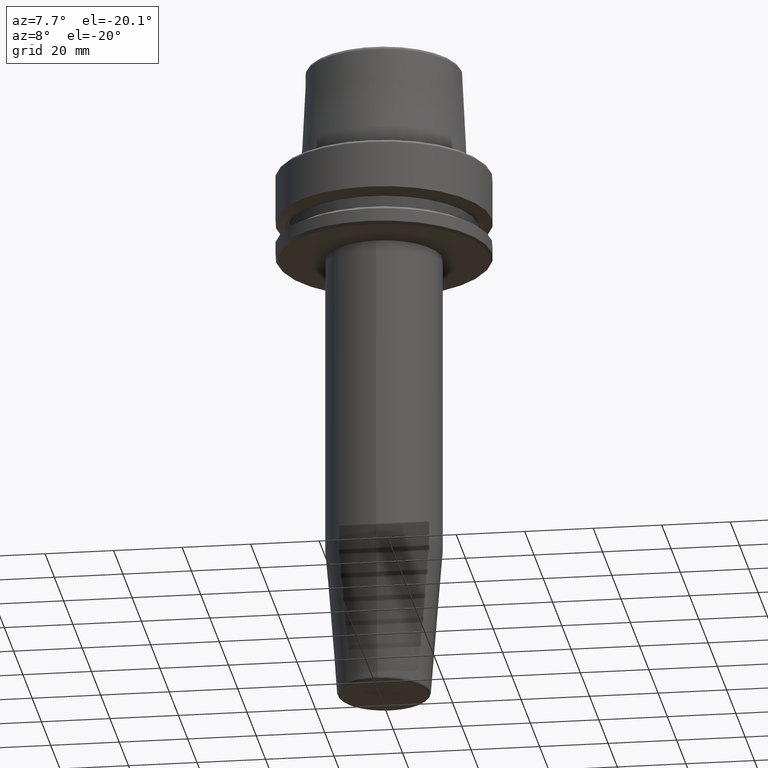
[diagram: clean part render]
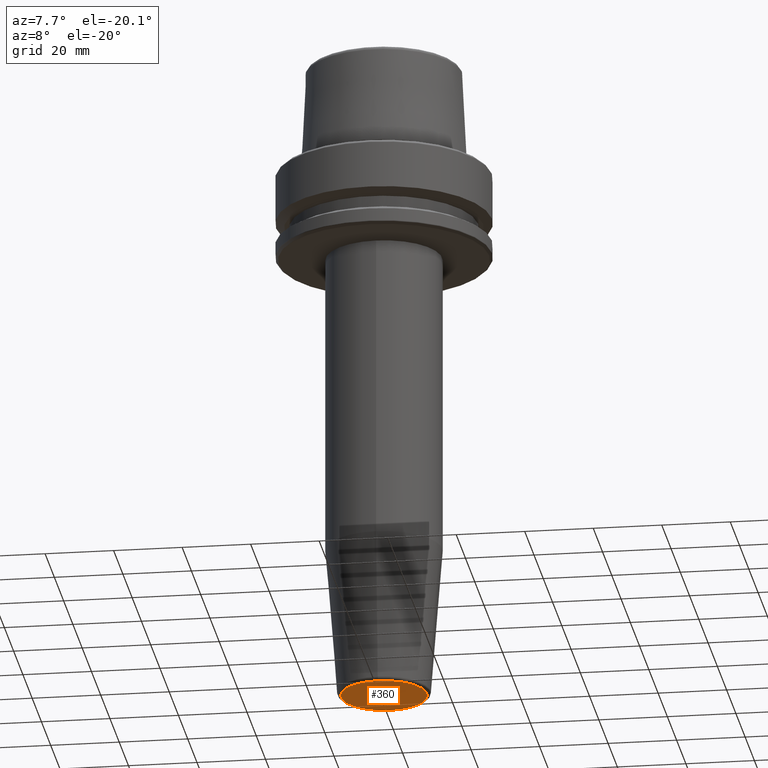
[diagram: same view with one face highlighted and labeled with its STEP entity id]
A machine part, auxiliary view. The second image highlights one B-rep face of the part: STEP entity #360.
In plain terms, the highlighted planar face has unit normal (0, -0, 1).
Its self-contained STEP definition (entity closure, byte-faithful):
#25 = DIRECTION ( 'NONE',  ( 0.0000000000000000000, -1.000000000000000000, -3.655662087007025400E-017 ) ) ;
#131 = AXIS2_PLACEMENT_3D ( 'NONE', #889, #314, #989 ) ;
#133 = VERTEX_POINT ( 'NONE', #137 ) ;
#137 = CARTESIAN_POINT ( 'NONE',  ( 1.601111574260318900E-015, -12.57560950834178600, -160.0000000000000000 ) ) ;
#251 = AXIS2_PLACEMENT_3D ( 'NONE', #392, #1065, #491 ) ;
#314 = DIRECTION ( 'NONE',  ( -0.0000000000000000000, 3.655662087007025400E-017, -1.000000000000000000 ) ) ;
#317 = AXIS2_PLACEMENT_3D ( 'NONE', #1184, #617, #25 ) ;
#360 = ADVANCED_FACE ( 'NONE', ( #548 ), #520, .F. ) ;
#368 = EDGE_CURVE ( 'NONE', #133, #1018, #1120, .T. ) ;
#392 = CARTESIAN_POINT ( 'NONE',  ( 0.0000000000000000000, 4.898587196589414600E-015, -160.0000000000000000 ) ) ;
#491 = DIRECTION ( 'NONE',  ( 0.0000000000000000000, 1.000000000000000000, 0.0000000000000000000 ) ) ;
#520 = PLANE ( 'NONE',  #317 ) ;
#548 = FACE_OUTER_BOUND ( 'NONE', #662, .T. ) ;
#617 = DIRECTION ( 'NONE',  ( 0.0000000000000000000, -3.655662087007025400E-017, 1.000000000000000000 ) ) ;
#662 = EDGE_LOOP ( 'NONE', ( #1094, #1167 ) ) ;
#808 = EDGE_CURVE ( 'NONE', #1018, #133, #873, .T. ) ;
#816 = CARTESIAN_POINT ( 'NONE',  ( 0.0000000000000000000, 12.57560950834179700, -160.0000000000000000 ) ) ;
#873 = CIRCLE ( 'NONE', #131, 12.57560950834179200 ) ;
#889 = CARTESIAN_POINT ( 'NONE',  ( 0.0000000000000000000, 4.898587196589414600E-015, -160.0000000000000000 ) ) ;
#989 = DIRECTION ( 'NONE',  ( 0.0000000000000000000, 1.000000000000000000, 0.0000000000000000000 ) ) ;
#1018 = VERTEX_POINT ( 'NONE', #816 ) ;
#1065 = DIRECTION ( 'NONE',  ( -0.0000000000000000000, 3.655662087007025400E-017, -1.000000000000000000 ) ) ;
#1094 = ORIENTED_EDGE ( 'NONE', *, *, #808, .T. ) ;
#1120 = CIRCLE ( 'NONE', #251, 12.57560950834179200 ) ;
#1167 = ORIENTED_EDGE ( 'NONE', *, *, #368, .T. ) ;
#1184 = CARTESIAN_POINT ( 'NONE',  ( 0.0000000000000000000, 8.402937573210560400E-033, -160.0000000000000000 ) ) ;